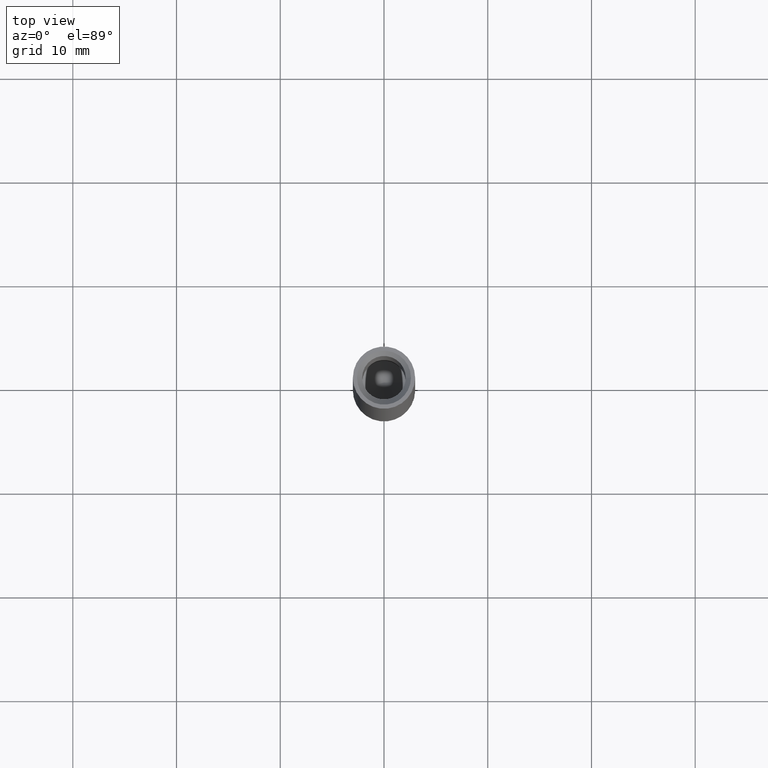
[diagram: clean part render]
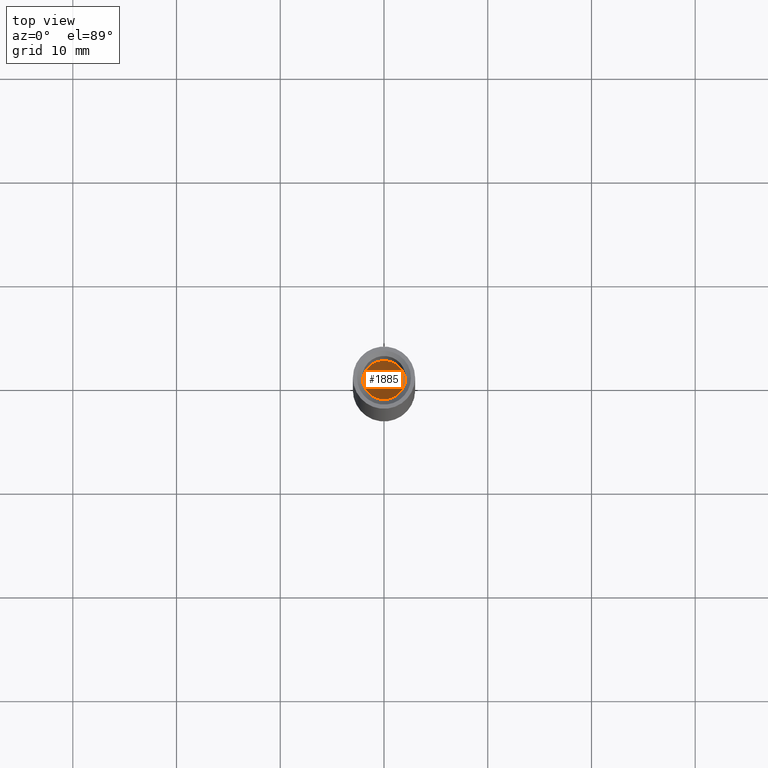
[diagram: same view with one face highlighted and labeled with its STEP entity id]
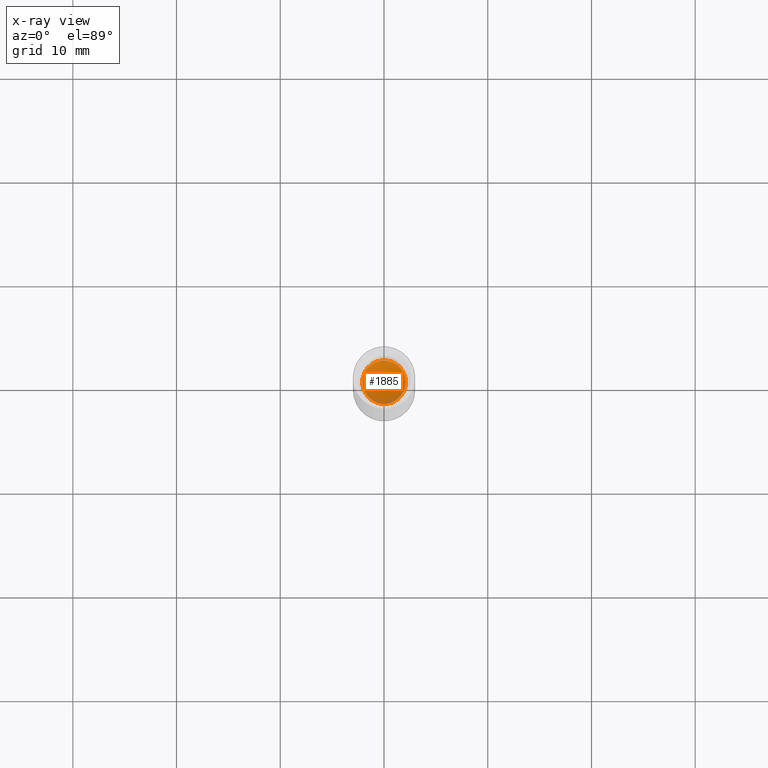
[diagram: x-ray of the same camera — body ghosted, the highlighted face saturated]
A machine part, top view. The second image highlights one B-rep face of the part: STEP entity #1885.
The next image is the same camera in x-ray: the body ghosted, the highlighted face saturated — about 14% of this face is hidden behind the body in this view.
In plain terms, the highlighted conical surface has half-angle 59 deg.
Its self-contained STEP definition (entity closure, byte-faithful):
#817 = DIRECTION ( 'NONE',  ( -0.000000000000000000, -0.000000000000000000, 1.000000000000000000 ) ) ;
#1058 = AXIS2_PLACEMENT_3D ( 'NONE', #12952, #817, #1919 ) ;
#1885 = ADVANCED_FACE ( 'NONE', ( #6539 ), #8559, .F. ) ;
#1919 = DIRECTION ( 'NONE',  ( 1.000000000000000000, 0.000000000000000000, 0.000000000000000000 ) ) ;
#3059 = DIRECTION ( 'NONE',  ( 1.000000000000000000, 0.000000000000000000, 0.000000000000000000 ) ) ;
#3807 = EDGE_LOOP ( 'NONE', ( #8508 ) ) ;
#5705 = CARTESIAN_POINT ( 'NONE',  ( 2.099999999999993872, 0.000000000000000000, 9.000000000000005329 ) ) ;
#6434 = CIRCLE ( 'NONE', #1058, 2.099999999999993872 ) ;
#6539 = FACE_OUTER_BOUND ( 'NONE', #3807, .T. ) ;
#8508 = ORIENTED_EDGE ( 'NONE', *, *, #13012, .T. ) ;
#8559 = CONICAL_SURFACE ( 'NONE', #12607, 2.099999999999993872, 1.029744258676651425 ) ;
#8577 = DIRECTION ( 'NONE',  ( -0.000000000000000000, -0.000000000000000000, 1.000000000000000000 ) ) ;
#10816 = CARTESIAN_POINT ( 'NONE',  ( 0.000000000000000000, 0.000000000000000000, 9.000000000000005329 ) ) ;
#12607 = AXIS2_PLACEMENT_3D ( 'NONE', #10816, #8577, #3059 ) ;
#12666 = VERTEX_POINT ( 'NONE', #5705 ) ;
#12952 = CARTESIAN_POINT ( 'NONE',  ( 0.000000000000000000, 0.000000000000000000, 9.000000000000005329 ) ) ;
#13012 = EDGE_CURVE ( 'NONE', #12666, #12666, #6434, .T. ) ;